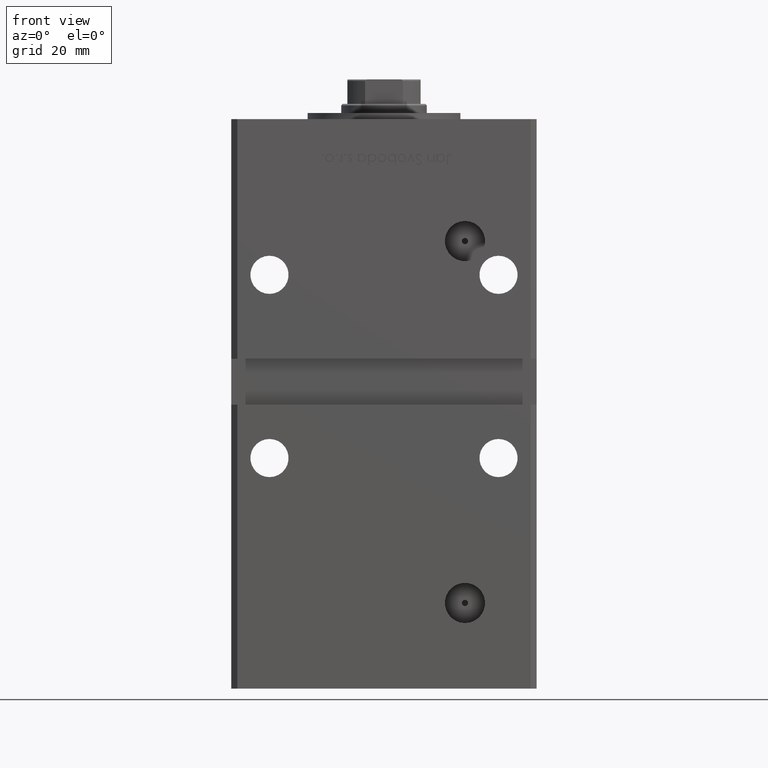
[diagram: clean part render]
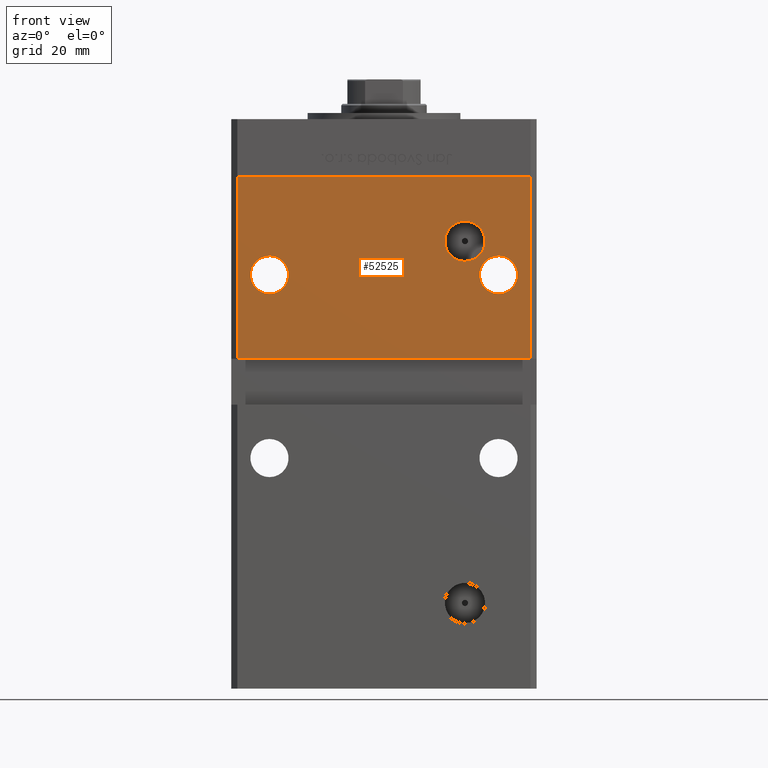
[diagram: same view with one face highlighted and labeled with its STEP entity id]
A machine part, front view. The second image highlights one B-rep face of the part: STEP entity #52525.
In plain terms, the highlighted planar face has unit normal (0, 1, 0).
Its self-contained STEP definition (entity closure, byte-faithful):
#133 = VERTEX_POINT ( 'NONE', #37715 ) ;
#611 = VERTEX_POINT ( 'NONE', #48379 ) ;
#691 = CIRCLE ( 'NONE', #13583, 6.250000000000005329 ) ;
#963 = ORIENTED_EDGE ( 'NONE', *, *, #36289, .F. ) ;
#1164 = FACE_BOUND ( 'NONE', #32567, .T. ) ;
#1578 = VERTEX_POINT ( 'NONE', #51618 ) ;
#1801 = EDGE_LOOP ( 'NONE', ( #13155, #20967 ) ) ;
#3455 = EDGE_CURVE ( 'NONE', #50034, #32982, #4995, .T. ) ;
#3704 = CARTESIAN_POINT ( 'NONE',  ( -47.99999999999998579, -43.50000000000000000, 148.5000000000000000 ) ) ;
#4995 = LINE ( 'NONE', #25967, #17517 ) ;
#5460 = FACE_BOUND ( 'NONE', #1801, .T. ) ;
#5815 = VECTOR ( 'NONE', #30643, 1000.000000000000000 ) ;
#5854 = CARTESIAN_POINT ( 'NONE',  ( 47.99999999999998579, -43.50000000000000000, 89.00000000000000000 ) ) ;
#5913 = CARTESIAN_POINT ( 'NONE',  ( 47.99999999999998579, -43.50000000000000000, 148.5000000000000000 ) ) ;
#6579 = CARTESIAN_POINT ( 'NONE',  ( 26.49999999999997513, -43.50000000000000000, 120.9200000000000159 ) ) ;
#8255 = CARTESIAN_POINT ( 'NONE',  ( 26.49999999999997513, -43.50000000000000000, 127.5000000000000000 ) ) ;
#9225 = DIRECTION ( 'NONE',  ( 0.000000000000000000, -0.000000000000000000, 1.000000000000000000 ) ) ;
#10331 = CARTESIAN_POINT ( 'NONE',  ( -47.99999999999998579, -43.50000000000000000, 89.00000000000000000 ) ) ;
#12485 = ORIENTED_EDGE ( 'NONE', *, *, #47282, .T. ) ;
#12758 = AXIS2_PLACEMENT_3D ( 'NONE', #8255, #37538, #40525 ) ;
#12835 = DIRECTION ( 'NONE',  ( 0.000000000000000000, 0.000000000000000000, 1.000000000000000000 ) ) ;
#13155 = ORIENTED_EDGE ( 'NONE', *, *, #39255, .T. ) ;
#13583 = AXIS2_PLACEMENT_3D ( 'NONE', #26560, #14728, #25758 ) ;
#14008 = VERTEX_POINT ( 'NONE', #19245 ) ;
#14701 = ORIENTED_EDGE ( 'NONE', *, *, #17955, .T. ) ;
#14728 = DIRECTION ( 'NONE',  ( 0.000000000000000000, 1.000000000000000000, 0.000000000000000000 ) ) ;
#15207 = ORIENTED_EDGE ( 'NONE', *, *, #3455, .F. ) ;
#16329 = EDGE_CURVE ( 'NONE', #17980, #28237, #44209, .T. ) ;
#16727 = AXIS2_PLACEMENT_3D ( 'NONE', #42757, #51089, #17755 ) ;
#17176 = ORIENTED_EDGE ( 'NONE', *, *, #16329, .T. ) ;
#17517 = VECTOR ( 'NONE', #34030, 1000.000000000000000 ) ;
#17755 = DIRECTION ( 'NONE',  ( 0.000000000000000000, 0.000000000000000000, 1.000000000000000000 ) ) ;
#17955 = EDGE_CURVE ( 'NONE', #28237, #17980, #28767, .T. ) ;
#17980 = VERTEX_POINT ( 'NONE', #45100 ) ;
#18598 = DIRECTION ( 'NONE',  ( 0.000000000000000000, 0.000000000000000000, -1.000000000000000000 ) ) ;
#19038 = AXIS2_PLACEMENT_3D ( 'NONE', #30460, #21857, #9225 ) ;
#19245 = CARTESIAN_POINT ( 'NONE',  ( -37.50000000000000000, -43.50000000000000000, 110.2499999999999858 ) ) ;
#19637 = CIRCLE ( 'NONE', #12758, 6.579999999999988525 ) ;
#19788 = EDGE_CURVE ( 'NONE', #27101, #32982, #42884, .T. ) ;
#19846 = DIRECTION ( 'NONE',  ( 0.000000000000000000, 0.000000000000000000, 1.000000000000000000 ) ) ;
#20039 = ORIENTED_EDGE ( 'NONE', *, *, #29414, .F. ) ;
#20184 = AXIS2_PLACEMENT_3D ( 'NONE', #40012, #31683, #19846 ) ;
#20587 = VECTOR ( 'NONE', #28433, 1000.000000000000000 ) ;
#20967 = ORIENTED_EDGE ( 'NONE', *, *, #31622, .T. ) ;
#21857 = DIRECTION ( 'NONE',  ( 0.000000000000000000, 1.000000000000000000, 0.000000000000000000 ) ) ;
#22960 = CIRCLE ( 'NONE', #34078, 6.579999999999988525 ) ;
#24555 = VECTOR ( 'NONE', #52267, 1000.000000000000000 ) ;
#25758 = DIRECTION ( 'NONE',  ( 0.000000000000000000, 0.000000000000000000, 1.000000000000000000 ) ) ;
#25967 = CARTESIAN_POINT ( 'NONE',  ( -49.99999999999998579, -43.50000000000000000, 89.00000000000000000 ) ) ;
#26408 = DIRECTION ( 'NONE',  ( -0.000000000000000000, 1.000000000000000000, -0.000000000000000000 ) ) ;
#26560 = CARTESIAN_POINT ( 'NONE',  ( -37.50000000000000000, -43.50000000000000000, 116.4999999999999858 ) ) ;
#27019 = CARTESIAN_POINT ( 'NONE',  ( -47.99999999999998579, -43.50000000000000000, 148.5000000000000000 ) ) ;
#27101 = VERTEX_POINT ( 'NONE', #43500 ) ;
#28084 = ORIENTED_EDGE ( 'NONE', *, *, #41915, .T. ) ;
#28142 = ORIENTED_EDGE ( 'NONE', *, *, #19788, .T. ) ;
#28237 = VERTEX_POINT ( 'NONE', #38881 ) ;
#28433 = DIRECTION ( 'NONE',  ( 1.000000000000000000, 0.000000000000000000, 0.000000000000000000 ) ) ;
#28767 = CIRCLE ( 'NONE', #20184, 6.250000000000005329 ) ;
#29414 = EDGE_CURVE ( 'NONE', #1578, #50034, #50530, .T. ) ;
#29655 = FACE_OUTER_BOUND ( 'NONE', #34415, .T. ) ;
#30041 = AXIS2_PLACEMENT_3D ( 'NONE', #42131, #49667, #12835 ) ;
#30460 = CARTESIAN_POINT ( 'NONE',  ( -47.99999999999998579, -43.50000000000000000, 148.5000000000000000 ) ) ;
#30643 = DIRECTION ( 'NONE',  ( -0.000000000000000000, -0.000000000000000000, -1.000000000000000000 ) ) ;
#31622 = EDGE_CURVE ( 'NONE', #133, #41504, #19637, .T. ) ;
#31683 = DIRECTION ( 'NONE',  ( 0.000000000000000000, 1.000000000000000000, 0.000000000000000000 ) ) ;
#32567 = EDGE_LOOP ( 'NONE', ( #12485, #28084 ) ) ;
#32982 = VERTEX_POINT ( 'NONE', #10331 ) ;
#34030 = DIRECTION ( 'NONE',  ( -1.000000000000000000, -0.000000000000000000, -0.000000000000000000 ) ) ;
#34078 = AXIS2_PLACEMENT_3D ( 'NONE', #39839, #26408, #18598 ) ;
#34415 = EDGE_LOOP ( 'NONE', ( #28142, #15207, #20039, #963 ) ) ;
#36289 = EDGE_CURVE ( 'NONE', #27101, #1578, #44573, .T. ) ;
#37538 = DIRECTION ( 'NONE',  ( -0.000000000000000000, 1.000000000000000000, -0.000000000000000000 ) ) ;
#37715 = CARTESIAN_POINT ( 'NONE',  ( 26.49999999999997513, -43.50000000000000000, 134.0800000000000125 ) ) ;
#38798 = FACE_BOUND ( 'NONE', #45090, .T. ) ;
#38881 = CARTESIAN_POINT ( 'NONE',  ( 37.50000000000000000, -43.50000000000000000, 122.7500000000000000 ) ) ;
#39255 = EDGE_CURVE ( 'NONE', #41504, #133, #22960, .T. ) ;
#39839 = CARTESIAN_POINT ( 'NONE',  ( 26.49999999999997513, -43.50000000000000000, 127.5000000000000000 ) ) ;
#40012 = CARTESIAN_POINT ( 'NONE',  ( 37.50000000000000000, -43.50000000000000000, 116.4999999999999858 ) ) ;
#40525 = DIRECTION ( 'NONE',  ( 0.000000000000000000, 0.000000000000000000, -1.000000000000000000 ) ) ;
#41504 = VERTEX_POINT ( 'NONE', #6579 ) ;
#41753 = PLANE ( 'NONE',  #19038 ) ;
#41915 = EDGE_CURVE ( 'NONE', #14008, #611, #691, .T. ) ;
#42131 = CARTESIAN_POINT ( 'NONE',  ( -37.50000000000000000, -43.50000000000000000, 116.4999999999999858 ) ) ;
#42757 = CARTESIAN_POINT ( 'NONE',  ( 37.50000000000000000, -43.50000000000000000, 116.4999999999999858 ) ) ;
#42884 = LINE ( 'NONE', #27019, #24555 ) ;
#43500 = CARTESIAN_POINT ( 'NONE',  ( -47.99999999999998579, -43.50000000000000000, 148.5000000000000000 ) ) ;
#44209 = CIRCLE ( 'NONE', #16727, 6.250000000000005329 ) ;
#44573 = LINE ( 'NONE', #3704, #20587 ) ;
#45090 = EDGE_LOOP ( 'NONE', ( #14701, #17176 ) ) ;
#45100 = CARTESIAN_POINT ( 'NONE',  ( 37.50000000000000000, -43.50000000000000000, 110.2499999999999858 ) ) ;
#47282 = EDGE_CURVE ( 'NONE', #611, #14008, #52347, .T. ) ;
#48379 = CARTESIAN_POINT ( 'NONE',  ( -37.50000000000000000, -43.50000000000000000, 122.7500000000000000 ) ) ;
#49667 = DIRECTION ( 'NONE',  ( 0.000000000000000000, 1.000000000000000000, 0.000000000000000000 ) ) ;
#50034 = VERTEX_POINT ( 'NONE', #5854 ) ;
#50530 = LINE ( 'NONE', #5913, #5815 ) ;
#51089 = DIRECTION ( 'NONE',  ( 0.000000000000000000, 1.000000000000000000, 0.000000000000000000 ) ) ;
#51618 = CARTESIAN_POINT ( 'NONE',  ( 47.99999999999998579, -43.50000000000000000, 148.5000000000000000 ) ) ;
#52267 = DIRECTION ( 'NONE',  ( -0.000000000000000000, -0.000000000000000000, -1.000000000000000000 ) ) ;
#52347 = CIRCLE ( 'NONE', #30041, 6.250000000000005329 ) ;
#52525 = ADVANCED_FACE ( 'NONE', ( #38798, #1164, #29655, #5460 ), #41753, .F. ) ;